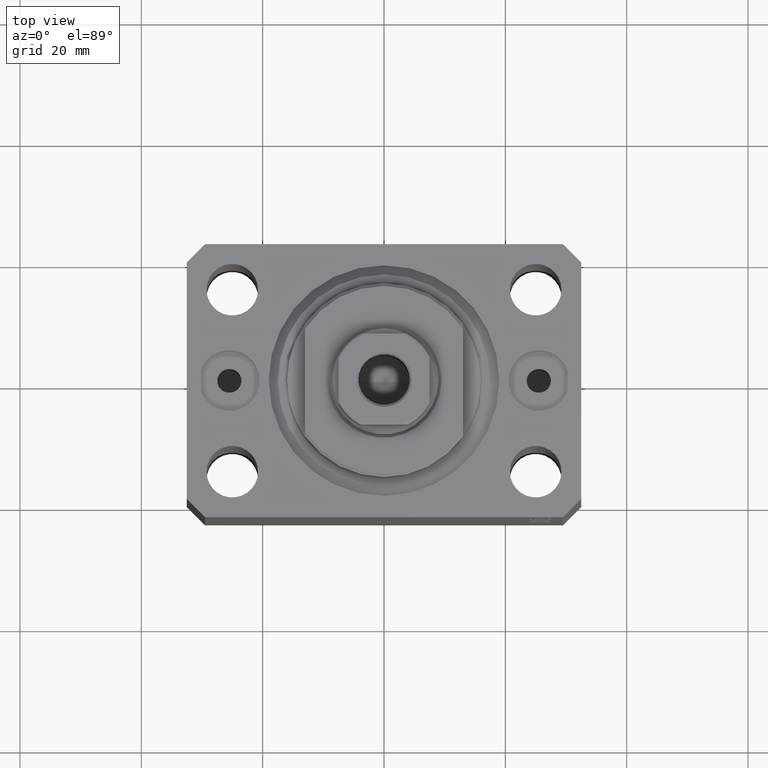
[diagram: clean part render]
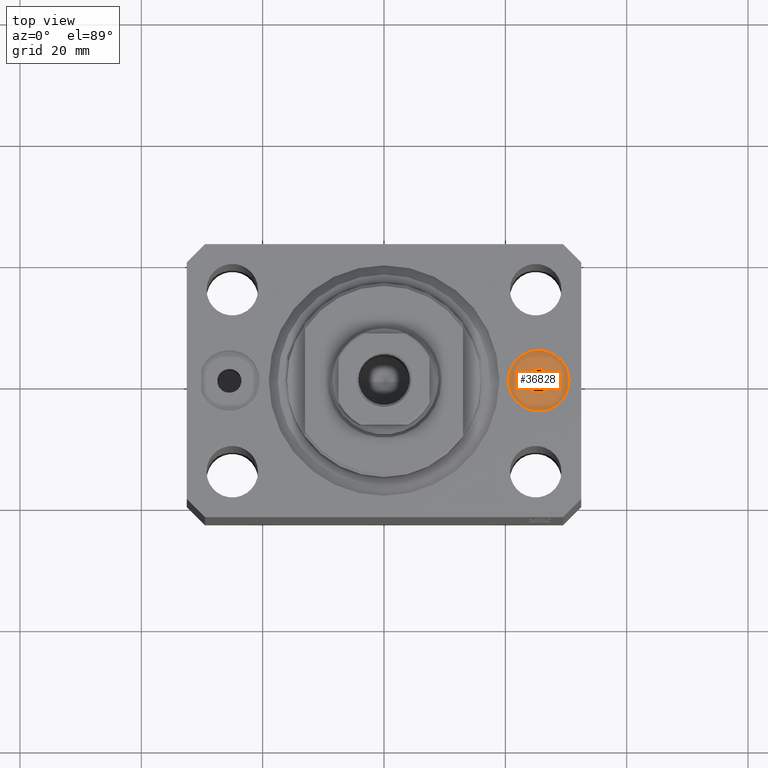
[diagram: same view with one face highlighted and labeled with its STEP entity id]
A machine part, top view. The second image highlights one B-rep face of the part: STEP entity #36828.
In plain terms, the highlighted planar face has unit normal (0, 0, 1).
Its self-contained STEP definition (entity closure, byte-faithful):
#635 = AXIS2_PLACEMENT_3D ( 'NONE', #6436, #9346, #36789 ) ;
#1168 = DIRECTION ( 'NONE',  ( 0.000000000000000000, -0.000000000000000000, -1.000000000000000000 ) ) ;
#1810 = CIRCLE ( 'NONE', #13326, 1.999999999996657341 ) ;
#2283 = EDGE_LOOP ( 'NONE', ( #6355, #3082 ) ) ;
#2871 = CARTESIAN_POINT ( 'NONE',  ( 30.50000000000333955, 0.000000000000000000, -1.899999999999999911 ) ) ;
#2948 = VERTEX_POINT ( 'NONE', #43028 ) ;
#3082 = ORIENTED_EDGE ( 'NONE', *, *, #10101, .F. ) ;
#4427 = AXIS2_PLACEMENT_3D ( 'NONE', #29970, #13060, #9252 ) ;
#5194 = CARTESIAN_POINT ( 'NONE',  ( 25.50000000000000000, 0.000000000000000000, -1.899999999999999911 ) ) ;
#6355 = ORIENTED_EDGE ( 'NONE', *, *, #36401, .F. ) ;
#6436 = CARTESIAN_POINT ( 'NONE',  ( 0.000000000000000000, 0.000000000000000000, -1.899999999999999911 ) ) ;
#9252 = DIRECTION ( 'NONE',  ( 1.000000000000000000, 0.000000000000000000, 0.000000000000000000 ) ) ;
#9346 = DIRECTION ( 'NONE',  ( -0.000000000000000000, 0.000000000000000000, 1.000000000000000000 ) ) ;
#10101 = EDGE_CURVE ( 'NONE', #16470, #10676, #12292, .T. ) ;
#10676 = VERTEX_POINT ( 'NONE', #2871 ) ;
#10997 = CARTESIAN_POINT ( 'NONE',  ( 23.50000000000333955, 2.449293598290615678E-16, -1.899999999999999911 ) ) ;
#12184 = CARTESIAN_POINT ( 'NONE',  ( 20.49999999999665690, 6.123233995740857512E-16, -1.899999999999999911 ) ) ;
#12292 = CIRCLE ( 'NONE', #4427, 5.000000000003342215 ) ;
#13060 = DIRECTION ( 'NONE',  ( 0.000000000000000000, -0.000000000000000000, -1.000000000000000000 ) ) ;
#13326 = AXIS2_PLACEMENT_3D ( 'NONE', #36148, #29871, #43339 ) ;
#15134 = EDGE_CURVE ( 'NONE', #2948, #41110, #34702, .T. ) ;
#16470 = VERTEX_POINT ( 'NONE', #12184 ) ;
#20189 = DIRECTION ( 'NONE',  ( 1.000000000000000000, 0.000000000000000000, 0.000000000000000000 ) ) ;
#20759 = CIRCLE ( 'NONE', #37254, 5.000000000003342215 ) ;
#21536 = EDGE_LOOP ( 'NONE', ( #23197, #39048 ) ) ;
#23197 = ORIENTED_EDGE ( 'NONE', *, *, #15134, .F. ) ;
#26590 = EDGE_CURVE ( 'NONE', #41110, #2948, #1810, .T. ) ;
#26912 = FACE_OUTER_BOUND ( 'NONE', #2283, .T. ) ;
#29871 = DIRECTION ( 'NONE',  ( 0.000000000000000000, 0.000000000000000000, 1.000000000000000000 ) ) ;
#29970 = CARTESIAN_POINT ( 'NONE',  ( 25.50000000000000000, 0.000000000000000000, -1.899999999999999911 ) ) ;
#34702 = CIRCLE ( 'NONE', #38980, 1.999999999996657341 ) ;
#34777 = DIRECTION ( 'NONE',  ( 0.000000000000000000, 0.000000000000000000, 1.000000000000000000 ) ) ;
#36148 = CARTESIAN_POINT ( 'NONE',  ( 25.50000000000000000, 0.000000000000000000, -1.899999999999999911 ) ) ;
#36401 = EDGE_CURVE ( 'NONE', #10676, #16470, #20759, .T. ) ;
#36789 = DIRECTION ( 'NONE',  ( 1.000000000000000000, 0.000000000000000000, 0.000000000000000000 ) ) ;
#36828 = ADVANCED_FACE ( 'NONE', ( #44208, #26912 ), #40160, .T. ) ;
#37254 = AXIS2_PLACEMENT_3D ( 'NONE', #5194, #1168, #39365 ) ;
#38150 = CARTESIAN_POINT ( 'NONE',  ( 25.50000000000000000, 0.000000000000000000, -1.899999999999999911 ) ) ;
#38980 = AXIS2_PLACEMENT_3D ( 'NONE', #38150, #34777, #20189 ) ;
#39048 = ORIENTED_EDGE ( 'NONE', *, *, #26590, .F. ) ;
#39365 = DIRECTION ( 'NONE',  ( 1.000000000000000000, 0.000000000000000000, 0.000000000000000000 ) ) ;
#40160 = PLANE ( 'NONE',  #635 ) ;
#41110 = VERTEX_POINT ( 'NONE', #10997 ) ;
#43028 = CARTESIAN_POINT ( 'NONE',  ( 27.49999999999665690, 0.000000000000000000, -1.899999999999999911 ) ) ;
#43339 = DIRECTION ( 'NONE',  ( 1.000000000000000000, 0.000000000000000000, 0.000000000000000000 ) ) ;
#44208 = FACE_BOUND ( 'NONE', #21536, .T. ) ;